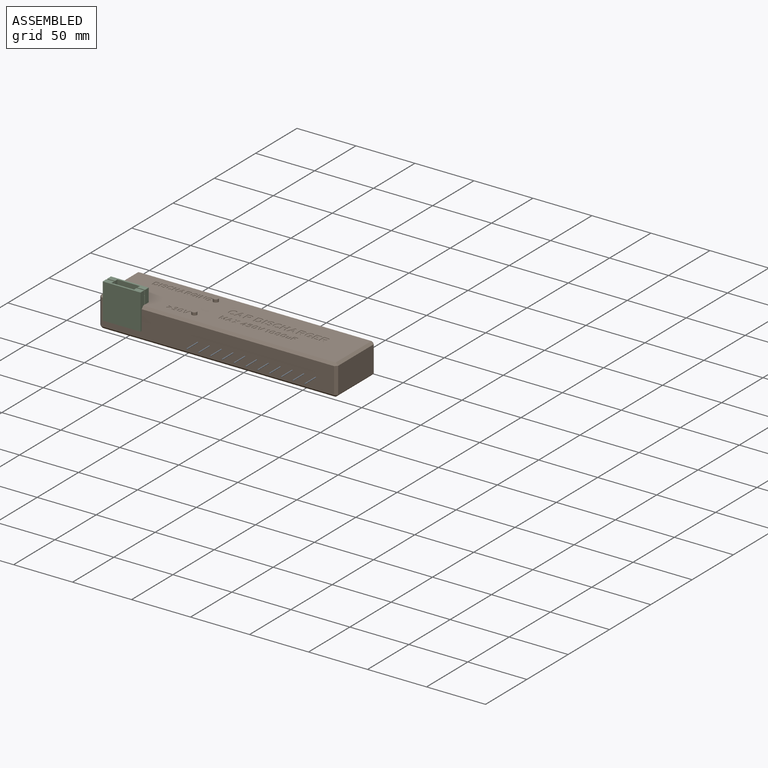
[diagram: assembled view]
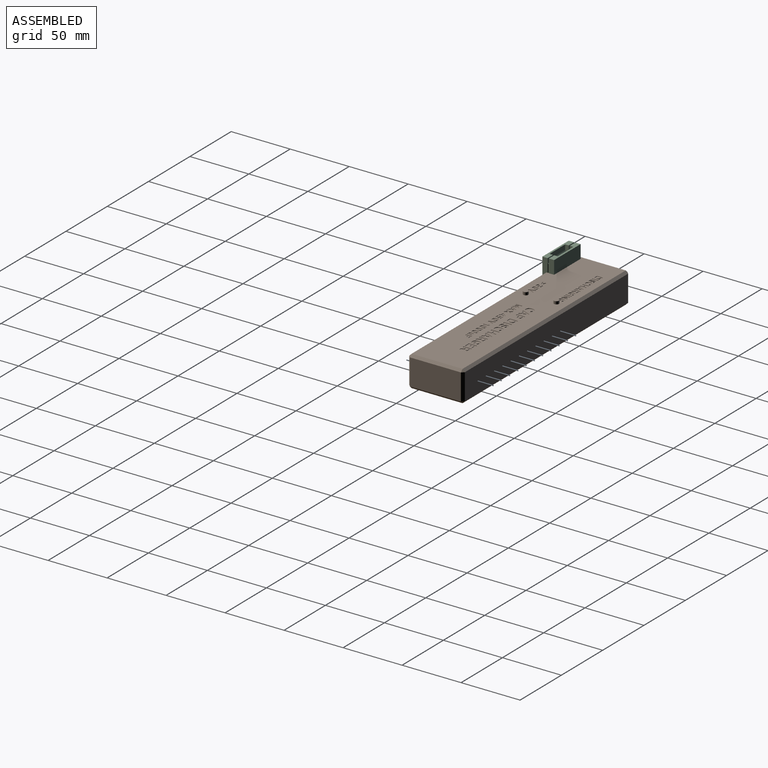
[diagram: assembled view, second angle]
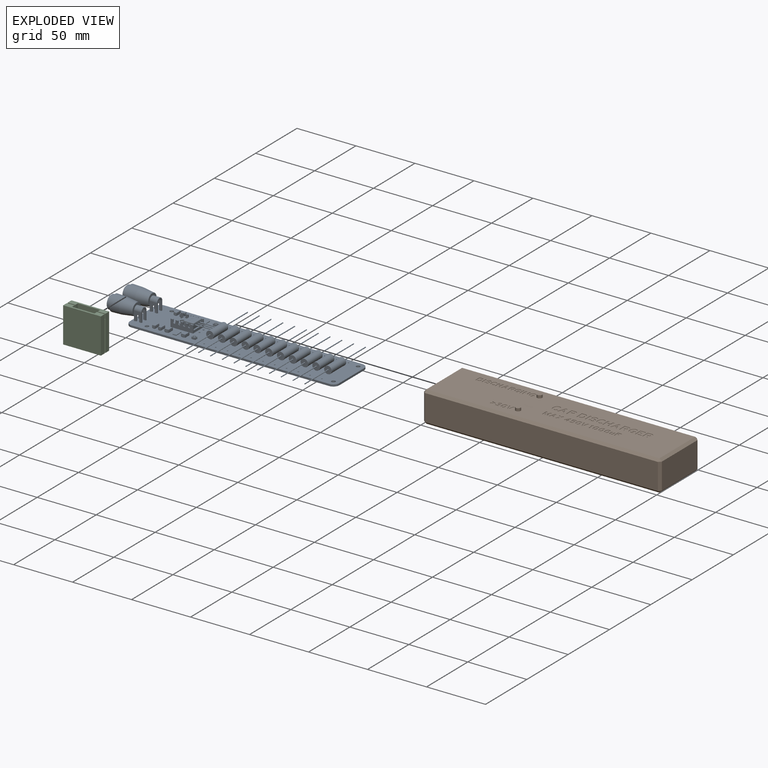
[diagram: exploded view]
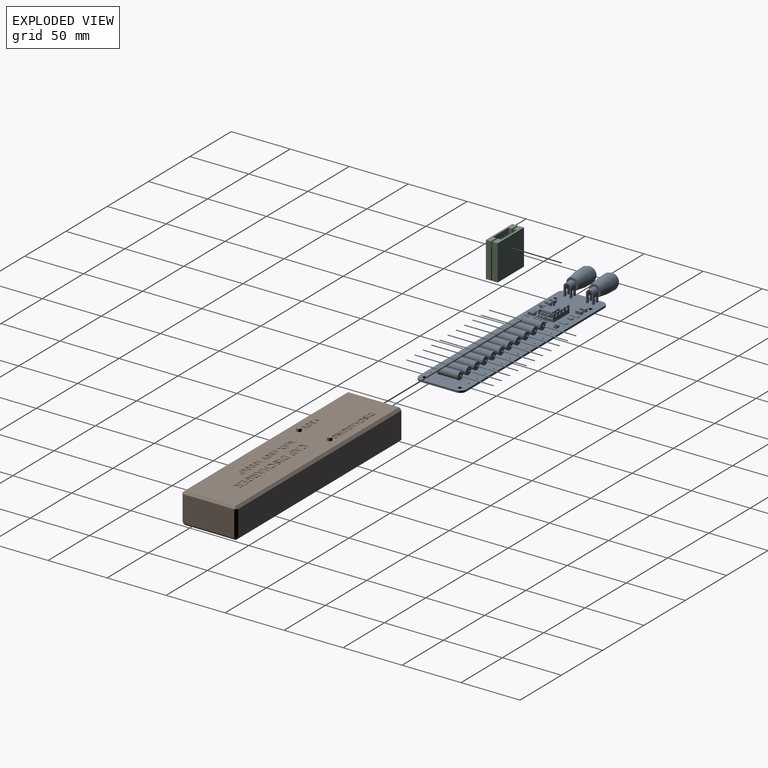
[diagram: exploded view, second angle]
FCSTD DOCUMENT  (FreeCAD 0.21R33771 (Git))
Label: 1024 Capacitor Discharger Case
License: All rights reserved
LicenseURL: http://en.wikipedia.org/wiki/All_rights_reserved
objects: Part::Feature×28, Sketcher::SketchObject×20, App::Link×18, App::Part×14, PartDesign::Pocket×13, PartDesign::Pad×10, PartDesign::Body×5, Part::Part2DObjectPython×4, Mesh::Feature×3, PartDesign::Chamfer×2, Spreadsheet::Sheet×1, PartDesign::CoordinateSystem×1
note: 108 computed .brp shape members not serialized (recipe doc carries the construction recipe); baked Part::Feature solids carry a one-line shape summary decoded from their .brp

FEATURE [Spreadsheet::Sheet] Spreadsheet  label="S"
  cells = A1='1024 Capacitor Discharger; A2='Handheld Case; A4='Board Edge Dimension X; B4='pcb_x; C4(pcb_x)==177.5 mm; D4='Design X dimension of PCB; A5='Board Edge Dimension Y; B5='pcb_y; C5(pcb_y)==40 mm; D5='Design Y dimension of PCB; A6='Board Thickness Z; B6='pcb_z; C6(pcb_z)==1.6 mm; D6='Design Z (thickness) dimension of PCB; A7='Mounting Hole 1 X Coordinate; B7='h1_x; C7(h1_x)==14.5 mm; D7='Relative to lower left corner of PCB, positive X to right, positive Y to top, note the Y coordinate sign is opposite KiCAD; A8='Mounting Hole 1 Y Coordinate; B8='h1_y; C8(h1_y)==5 mm; D8='Mounting Hole 1 = Lower Left, will be one of the registration pins; A9='Mounting Hole 1 Diameter; B9='h1_d; C9(h1_d)==3.2 mm; A10='Mounting Hole 2 X Coordinate; B10='h2_x; C10(h2_x)==14.5 mm; D10='Mounting Hole 2 = Upper Left, no registration; A11='Mounting Hole 2 Y Coordinate; B11='h2_y; C11(h2_y)==35 mm; A12='Mounting Hole 2 Diameter; B12='h2_d; C12(h2_d)==3.2 mm; A13='Mounting Hole 3 X Coordinate; B13='h3_x; C13(h3_x)==172.5 mm; D13='Mounting Hole 3 = Upper Right, will be one of the registration pins; A14='Mounting Hole 3 Y Coordinate; B14='h3_y; C14(h3_y)==35 mm; A15='Mounting Hole 3 Diameter; B15='h3_d; C15(h3_d)==3.2 mm; A16='Mounting Hole 4 X Coordinate; B16='h4_x; C16(h4_x)==172.5 mm; D16='Mounting Hole 4 = Lower Right, no registration; A17='Mounting Hole 4 Y Coordinate; B17='h4_y; C17(h4_y)==5 mm; A18='Mounting Hole 4 Diameter; B18='h4_d; C18(h4_d)==3.2 mm; A19='Connector Protrusion Left; B19='con_l; C19(con_l)==17 mm; D19='Distance from the board edge to the edge of any connector that protrudes from the left side MINUS the wall thickness.  Enter the clearance from the PCB edge if no connector on this edge.; A20='Connector Protrusion Right; B20='con_r; C20(con_r)==0.2 mm; A21='Connector Protrusion Top; B21='con_t; C21(con_t)==0.2 mm; A22='Connector Protrusion Bottom; B22='con_b; C22(con_b)==0.2 mm; A24='Case Assembly Screw Head Diameter; B24='scrw_head_d; C24(scrw_head_d)==5.33 mm; D24='Diameter of the screw head for assembling the case halves; A25='Case Assembly Screw Head Length; B25='scrw_head_l; C25(scrw_head_l)==2.93 mm; D25='Vertical distance between screw head compression surface and screw head top; A26='Case Assembly Screw Head Countersink; B26='scrw_head_cs; C26(scrw_head_cs)==1 mm; D26='Distance below the case surface of the top of the screw head; A27='Case Assembly Screw Head Seating Thickness; B27='scrw_heat_seatt; C27(scrw_heat_seatt)==2 mm; D27='The thickness of the plastic under the screw head; A28='Case Assembly Screw Major Diameter; B28='scrw_shaft_d; C28(scrw_shaft_d)==2.93 mm; D28='The major diameter of the screw; A29='Case Assembly Screw Hole Clearance; B29='scrw_clr; C29(scrw_clr)==0.5 mm; D29='The clearance required for the screw to pass through the plastic; A30='Case Assembly Screw Head Clearance; B30='scrw_head_clr; C30(scrw_head_clr)==0.75 mm; D30='The clearance required for the screw head; A31='Selected Heat Set Inserts for Top Case Half; C31='M3x6; A32='Heat Set Insert Height; B32='hsi_h; C32(hsi_h)==6.01 mm; D32='Height of the heat set insert; A33='Heat Set Insert Major Diameter; B33='hsi_majd; C33(hsi_majd)==4.19 mm; D33='Diameter of the outer ribs of the heat set insert; A34='Heat Set Insert Minor Diameter; B34='hsi_mind; C34(hsi_mind)==3.77 mm; D34='Diameter of the outer portion of the insert without the ribs; A35='Heat Set Insert Screw Depth Clearance; B35='hsi_scrwclr; C35(hsi_scrwclr)==2 mm; D35='Additional space beyond the insert where the screw can protrude through the insert; A36='3D Print Overextrude Dimension; B36='ThreeDP_overext; C36(ThreeDP_overext)==0.15 mm; D36='The amount that the 3D printer will extrude plastic beyond a given boundary; A37='3D Print Layer Height; B37='ThreeDP_layerh; C37(ThreeDP_layerh)==0.4 mm; D37='The layer height of the 3D print, used to compute screw hole bridges; A38='Heat Set Insert Hole Diameter; B38='hsi_hole_dia; C38(hsi_hole_dia)==(C33 + C34) / 2 + 2 * C36; D38='Final calculated HSI hole diameter; A39='Heat Set Insert Hole Depth; B39='hsi_hole_depth; C39(hsi_hole_depth)==C32 + C35; D39='Final calculated HSI hole depth; A40='HSI Enclosure Wall Thickness; B40='hsi_wallt; C40(hsi_wallt)==2 mm; D40='The thickness of the plastic that has to surround the hole where the HSI is going to be inserted; A41='PCB Component Maximum Height; B41='pcb_comph; C41(pcb_comph)==7.6 mm + 13.5 mm / 2; D41='The maximum height above the PCB surface of any component; A42='PCB Component Height Clearance; B42='pcb_comph_clr; C42(pcb_comph_clr)==1 mm; D42='The clearance between the top of the highest component on the PCB and the inner surface of the top wall; A43='Case Wall Thickness; B43='case_wallt; C43(case_wallt)==3.4 mm; D43='The thickness of the case walls, the overlap thickness will be half of this; A44='Case Halves Overlap Distance; B44='case_overlap; C44(case_overlap)==2.4 mm; D44='The amount of overlap of the two case halves; A45='Case Bottom Half Height; B45='case_bot_h; C45(case_bot_h)==C26 + C25 + C27 + C6; D45='The height of the case bottom half aligns with the top of the PCB. = Screw countersink + screw head height + screw seating thickness + PCB thickness; A46='Case Top Half Height; B46='case_top_h; C46(case_top_h)==C41 + C42 + C43; D46='The height of the case top half aligns with the top of the PCB. = PCB component max height + clearance + wall thickness; A47='Case Width; B47='case_x; C47(case_x)==2 * C43 + C4 + C19 + C20; D47='Total outside dimension of the case in the X direction. = 2*Wall thickness + PCB_X + Connector Left + Connector Right; A48='Case Depth; B48='case_y; C48(case_y)==2 * C43 + C5 + C21 + C22; D48='Total outside dimension of the case in the Y direction. = 2*Wall thickness + PCB_Y + Connector Top + Connector Bottom; A49='LED Mounting Height; B49='led_h; C49(led_h)==3.27 mm; D49='Height above PCB surface of the LED; A50='Light Pipe Maximum Height; B50='led_lp_hmax; C50(led_lp_hmax)==C46 - C49; D50='Light pipe distance maximum, actual light pipe distance needs to be less than this; A51='Light Pipe Actual Height; B51='led_lp_h; C51(led_lp_h)==12.7 mm; D51='Light pipe distance actual; A52='Project Title Location X; B52='prtit_x; C52(prtit_x)==70 mm; D52='Location of the Project Title Text X; A53='Project Title Location Y; B53='prtit_y; C53(prtit_y)==21.25 mm; D53='Location of the Project Title Text Y; A54='Project Title Font Size; B54='prtit_fontsz; C54(prtit_fontsz)==8 mm; D54='Font Size of the Project Title; A55='Project Title Text; B55='prtit_text; C55(prtit_text)='CAP DISCHARGER; D55='Text of the Project Title; A56='Subtitle Location X; B56='subt_x; C56(subt_x)==70 mm; D56='Location of the Subtitle Text X; A57='Subtitle Location Y; B57='subt_y; +58 more cells
FEATURE [PartDesign::CoordinateSystem] Local_CS_7993
  AttacherType = Attacher::AttachEngine3D
  MapMode = 2
  Support = -> [X_Axis001]
FEATURE [Part::Feature] Pcb_7993
  Placement = pos=(-68.5,115,0) rot=(0,0,1;0rad)
  shape: bbox 177.5 x 40 x 1.646 mm, 48 faces (baked)
FEATURE [Sketcher::SketchObject] PCB_Sketch_7993
  FullyConstrained = false
  sketch-geometry (8):
    g0: LineSegment StartX=5 StartY=40 StartZ=0 EndX=172.5 EndY=40 EndZ=0
    g1: LineSegment StartX=-9e-16 StartY=35 StartZ=0 EndX=-9e-16 EndY=5 EndZ=0
    g2: LineSegment StartX=177.5 StartY=35 StartZ=0 EndX=177.5 EndY=5 EndZ=0
    g3: LineSegment StartX=172.5 StartY=-1.8e-15 StartZ=0 EndX=5 EndY=-9e-16 EndZ=0
    g4: ArcOfCircle CenterX=5 CenterY=5 CenterZ=0 NormalX=0 NormalY=0 NormalZ=-1 AngleXU=-1.5708 Radius=5 StartAngle=0 EndAngle=1.5708
    g5: ArcOfCircle CenterX=172.5 CenterY=35 CenterZ=0 NormalX=0 NormalY=0 NormalZ=-1 AngleXU=1.5708 Radius=5 StartAngle=0 EndAngle=1.5708
    g6: ArcOfCircle CenterX=5 CenterY=35 CenterZ=0 NormalX=0 NormalY=0 NormalZ=-1 AngleXU=-6.42331e-08 Radius=5 StartAngle=0 EndAngle=1.5708
    g7: ArcOfCircle CenterX=172.5 CenterY=5 CenterZ=0 NormalX=0 NormalY=0 NormalZ=-1 AngleXU=3.14159 Radius=5 StartAngle=0 EndAngle=1.5708
  constraints (8):
    c: Coincident(g1,g4)
    c: Coincident(g1,g6)
    c: Coincident(g3,g4)
    c: Coincident(g0,g6)
    c: Coincident(g3,g7)
    c: Coincident(g0,g5)
    c: Coincident(g2,g7)
    c: Coincident(g2,g5)
FEATURE [App::Part] Board_Geoms_7993
  Group = -> [Pcb_7993,PCB_Sketch_7993]
  Origin = -> Origin
FEATURE [Part::Feature] Part__Feature  label="Body"
  shape: bbox 3.16 x 2.81 x 1.8 mm, 88 faces (baked)
FEATURE [Part::Feature] Part__Feature001  label="Pins"
  Placement = pos=(0,1e-15,0.740085) rot=(0,0,1;0rad)
  shape: bbox 3.5 x 0.7 x 1.2 mm, 22 faces (baked)
FEATURE [Part::Feature] Part__Feature002  label="Pins001"
  Placement = pos=(0,1e-15,0.740085) rot=(0,0,1;0rad)
  shape: bbox 3.5 x 0.7 x 1.2 mm, 22 faces (baked)
FEATURE [App::Part] Pins  label="Pins002"
  Group = -> [Part__Feature001,Part__Feature002]
  Origin = -> Origin008
FEATURE [Part::Feature] Part__Feature003  label="Dome"
  Placement = pos=(0,0,1.79) rot=(0,0,1;0rad)
  shape: bbox 2.5 x 2.4 x 2.5 mm, 2 faces (baked)
FEATURE [App::Part] _50141xx46100  label="D7_150141xx46100_null"
  Group = -> [Part__Feature,Pins,Part__Feature003]
  Origin = -> Origin009
  Placement = pos=(53.25,7,0) rot=(0,0,1;0rad)
FEATURE [Part::Feature] Part__Feature004  label="CC03B40E-02DF-4F59-954C-E15786C4EF3A"
  shape: bbox 6.21 x 21.45 x 13.77 mm, 42 faces (baked)
FEATURE [Part::Feature] Part__Feature005  label="CC03B40E-02DF-4F59-954C-E15786C4EF3A001"
  shape: bbox 13.46 x 21.59 x 13.46 mm, 28 faces (baked)
FEATURE [App::Part] CC03B40E_02DF_4F59_954C_E15786C4EF3A  label="J1_CC03B40E-02DF-4F59-954C-E15786C4EF3A002_null"
  Group = -> [Part__Feature004,Part__Feature005]
  Origin = -> Origin010
  Placement = pos=(1.9,10.475,0) rot=(0,0,1;1.5708rad)
FEATURE [Part::Feature] Part__Feature006  label="Product"
  shape: bbox 0.5 x 1.05 x 13.5 mm, 24 faces (baked)
FEATURE [Part::Feature] Part__Feature007  label="Product001"
  shape: bbox 0.5 x 1.35 x 13.5 mm, 26 faces (baked)
FEATURE [Part::Feature] Part__Feature008  label="Product002"
  shape: bbox 0.5 x 1.35 x 13.5 mm, 26 faces (baked)
FEATURE [Part::Feature] Part__Feature009  label="Product003"
  shape: bbox 4.58 x 10 x 9.25 mm, 23 faces (baked)
FEATURE [Part::Feature] Part__Feature010  label="Product004"
  shape: bbox 0.01 x 0.6891 x 0.8085 mm, 6 faces (baked)
FEATURE [Part::Feature] Part__Feature011  label="Product005"
  shape: bbox 0.01 x 0.5222 x 0.5222 mm, 4 faces (baked)
FEATURE [Part::Feature] Part__Feature012  label="Product006"
  shape: bbox 0.01 x 1.879 x 1.587 mm, 27 faces (baked)
FEATURE [Part::Feature] Part__Feature013  label="Product007"
  shape: bbox 1.27 x 9.9 x 12.95 mm, 26 faces (baked)
FEATURE [App::Part] Product  label="${REFERENCE}_Product008_null"
  Group = -> [Part__Feature006,Part__Feature007,Part__Feature008,Part__Feature009,Part__Feature010,Part__Feature011,Part__Feature012,Part__Feature013]
  Origin = -> Origin011
  Placement = pos=(51.52,20.04,5) rot=(0.707107,0,-0.707107;3.14159rad)
FEATURE [Part::Feature] Shape  label="${REFERENCE}_ATS-PCB1069_null[2]"
  Placement = pos=(38.05,20.05,0) rot=(0,0,-1;1.5708rad)
  shape: bbox 19.05 x 13.21 x 6.35 mm, 52 faces (baked)
FEATURE [Part::Feature] Shape001  label="${REFERENCE}_ROX5SSJ10R_null"
  Placement = pos=(133.5,20,4) rot=(1,0,0;1.5708rad)
  shape: bbox 13 x 73.5 x 6.5 mm, 34 faces (baked)
FEATURE [App::Link] __REFERENCE__ROX5SSJ10R_null_ln_  label="${REFERENCE}_ROX5SSJ10R_null001"
  LinkPlacement = pos=(63.5,20,4) rot=(1,0,0;1.5708rad)
  LinkedObject = -> Shape001
  Placement = pos=(63.5,20,4) rot=(1,0,0;1.5708rad)
FEATURE [Part::Feature] Part__Feature014  label="Body001"
  shape: bbox 4.995 x 2.605 x 2.3 mm, 15 faces (baked)
FEATURE [Part::Feature] Part__Feature015  label="FilletPin1"
  shape: bbox 1.14 x 1.45 x 1.135 mm, 12 faces (baked)
FEATURE [Part::Feature] Part__Feature016  label="FilletPin2"
  shape: bbox 1.24 x 1.45 x 1.135 mm, 12 faces (baked)
FEATURE [App::Part] ASSEMBLY  label="${REFERENCE}_ASSEMBLY_null"
  Group = -> [Part__Feature014,Part__Feature015,Part__Feature016]
  Origin = -> Origin012
  Placement = pos=(20.5,7,0) rot=(0,0,-1;1.5708rad)
FEATURE [Part::Feature] Part__Feature017  label="Body002"
  shape: bbox 5.205 x 3.625 x 2.37 mm, 15 faces (baked)
FEATURE [Part::Feature] Part__Feature018  label="FilletPin003"
  shape: bbox 1.18 x 2.08 x 1.167 mm, 12 faces (baked)
FEATURE [Part::Feature] Part__Feature019  label="FilletPin004"
  shape: bbox 1.28 x 2.08 x 1.167 mm, 12 faces (baked)
FEATURE [App::Part] ASSEMBLY001  label="${REFERENCE}_ASSEMBLY_null001"
  Group = -> [Part__Feature017,Part__Feature018,Part__Feature019]
  Origin = -> Origin013
  Placement = pos=(31.5,7,0) rot=(0,0,-1;1.5708rad)
FEATURE [App::Link] __REFERENCE__ROX5SSJ10R_null_ln_001  label="${REFERENCE}_ROX5SSJ10R_null002"
  LinkPlacement = pos=(163.5,20,4) rot=(1,0,0;1.5708rad)
  LinkedObject = -> Shape001
  Placement = pos=(163.5,20,4) rot=(1,0,0;1.5708rad)
FEATURE [Part::Feature] Part__Feature020  label="SOD128 Lead"
  Placement = pos=(-0.626035,4.71442,6.04954) rot=(0,0,1;0rad)
  shape: bbox 1.9 x 0.36 x 1.75 mm, 14 faces (baked)
FEATURE [Part::Feature] Part__Feature021  label="SOD128 Lead001"
  Placement = pos=(-0.626035,4.71442,6.04954) rot=(0,0,1;0rad)
  shape: bbox 1.9 x 0.36 x 1.75 mm, 14 faces (baked)
FEATURE [App::Part] SOD128_Lead  label="SOD128 Lead002"
  Group = -> [Part__Feature020,Part__Feature021]
  Origin = -> Origin014
FEATURE [Part::Feature] Part__Feature022  label="SOD128 Lower body"
  Placement = pos=(-0.126035,4.87442,5.67454) rot=(1,0,0;3.14159rad)
  shape: bbox 3.703 x 0.1548 x 2.503 mm, 28 faces (baked)
FEATURE [Part::Feature] Part__Feature023  label="SOD128 Upper body"
  Placement = pos=(-0.176035,4.87442,8.17454) rot=(0,0,1;0rad)
  shape: bbox 3.801 x 0.9125 x 2.6 mm, 74 faces (baked)
FEATURE [App::Part] SOD128_step  label="${REFERENCE}_SOD128 step_null"
  Group = -> [SOD128_Lead,Part__Feature022,Part__Feature023]
  Origin = -> Origin015
  Placement = pos=(29.53,31.34,-4.71) rot=(0.57735,0.57735,0.57735;2.0944rad)
FEATURE [App::Link] __REFERENCE__ASSEMBLY_null_ln_  label="${REFERENCE}_ASSEMBLY_null002"
  LinkPlacement = pos=(25.5,33,0) rot=(0,0,-1;1.5708rad)
  LinkedObject = -> ASSEMBLY
  Placement = pos=(25.5,33,0) rot=(0,0,-1;1.5708rad)
FEATURE [App::Link] __REFERENCE__ROX5SSJ10R_null_ln_002  label="${REFERENCE}_ROX5SSJ10R_null003"
  LinkPlacement = pos=(103.5,20,4) rot=(1,0,0;1.5708rad)
  LinkedObject = -> Shape001
  Placement = pos=(103.5,20,4) rot=(1,0,0;1.5708rad)
FEATURE [App::Link] __REFERENCE__ROX5SSJ10R_null_ln_003  label="${REFERENCE}_ROX5SSJ10R_null004"
  LinkPlacement = pos=(123.5,20,4) rot=(1,0,0;1.5708rad)
  LinkedObject = -> Shape001
  Placement = pos=(123.5,20,4) rot=(1,0,0;1.5708rad)
FEATURE [Part::Feature] Shape002  label="${REFERENCE}_R_2512_6332Metric_null"
  Placement = pos=(44.5,33,0) rot=(0,0,1;1.5708rad)
  shape: bbox 3.2 x 6.3 x 0.6 mm, 26 faces (baked)
FEATURE [App::Link] __REFERENCE__ROX5SSJ10R_null_ln_004  label="${REFERENCE}_ROX5SSJ10R_null005"
  LinkPlacement = pos=(83.5,20,4) rot=(1,0,0;1.5708rad)
  LinkedObject = -> Shape001
  Placement = pos=(83.5,20,4) rot=(1,0,0;1.5708rad)
FEATURE [App::Link] __REFERENCE__ROX5SSJ10R_null_ln_005  label="${REFERENCE}_ROX5SSJ10R_null006"
  LinkPlacement = pos=(153.5,20,4) rot=(1,0,0;1.5708rad)
  LinkedObject = -> Shape001
  Placement = pos=(153.5,20,4) rot=(1,0,0;1.5708rad)
FEATURE [App::Link] __REFERENCE__ROX5SSJ10R_null_ln_006  label="${REFERENCE}_ROX5SSJ10R_null007"
  LinkPlacement = pos=(93.5,20,4) rot=(1,0,0;1.5708rad)
  LinkedObject = -> Shape001
  Placement = pos=(93.5,20,4) rot=(1,0,0;1.5708rad)
FEATURE [App::Link] __REFERENCE__R_2512_6332Metric_null_ln_  label="${REFERENCE}_R_2512_6332Metric_null001"
  LinkPlacement = pos=(30.5,33,0) rot=(0,0,-1;1.5708rad)
  LinkedObject = -> Shape002
  Placement = pos=(30.5,33,0) rot=(0,0,-1;1.5708rad)
FEATURE [App::Link] J1_CC03B40E_02DF_4F59_954C_E15786C4EF3A002_null_ln_  label="J2_CC03B40E-02DF-4F59-954C-E15786C4EF3A002_null"
  LinkPlacement = pos=(1.9,29.525,0) rot=(0,0,1;1.5708rad)
  LinkedObject = -> CC03B40E_02DF_4F59_954C_E15786C4EF3A
  Placement = pos=(1.9,29.525,0) rot=(0,0,1;1.5708rad)
FEATURE [App::Link] __REFERENCE__R_2512_6332Metric_null_ln_001  label="${REFERENCE}_R_2512_6332Metric_null002"
  LinkPlacement = pos=(38.5,7,0) rot=(0,0,-1;1.5708rad)
  LinkedObject = -> Shape002
  Placement = pos=(38.5,7,0) rot=(0,0,-1;1.5708rad)
FEATURE [App::Link] __REFERENCE__ROX5SSJ10R_null_ln_007  label="${REFERENCE}_ROX5SSJ10R_null008"
  LinkPlacement = pos=(73.5,20,4) rot=(1,0,0;1.5708rad)
  LinkedObject = -> Shape001
  Placement = pos=(73.5,20,4) rot=(1,0,0;1.5708rad)
FEATURE [App::Link] __REFERENCE__ASSEMBLY_null_ln_001  label="${REFERENCE}_ASSEMBLY_null003"
  LinkPlacement = pos=(25.5,7,0) rot=(0,0,-1;1.5708rad)
  LinkedObject = -> ASSEMBLY
  Placement = pos=(25.5,7,0) rot=(0,0,-1;1.5708rad)
FEATURE [App::Link] D7_150141xx46100_null_ln_  label="D8_150141xx46100_null"
  LinkPlacement = pos=(53.25,33,0) rot=(0,0,1;0rad)
  LinkedObject = -> _50141xx46100
  Placement = pos=(53.25,33,0) rot=(0,0,1;0rad)
FEATURE [App::Link] __REFERENCE__ROX5SSJ10R_null_ln_008  label="${REFERENCE}_ROX5SSJ10R_null009"
  LinkPlacement = pos=(113.5,20,4) rot=(1,0,0;1.5708rad)
  LinkedObject = -> Shape001
  Placement = pos=(113.5,20,4) rot=(1,0,0;1.5708rad)
FEATURE [App::Link] __REFERENCE__ASSEMBLY_null001_ln_  label="${REFERENCE}_ASSEMBLY_null004"
  LinkPlacement = pos=(45.5,7,0) rot=(0,0,-1;1.5708rad)
  LinkedObject = -> ASSEMBLY001
  Placement = pos=(45.5,7,0) rot=(0,0,-1;1.5708rad)
FEATURE [App::Link] __REFERENCE__ASSEMBLY_null_ln_002  label="${REFERENCE}_ASSEMBLY_null005"
  LinkPlacement = pos=(20.5,33,0) rot=(0,0,-1;1.5708rad)
  LinkedObject = -> ASSEMBLY
  Placement = pos=(20.5,33,0) rot=(0,0,-1;1.5708rad)
FEATURE [App::Link] __REFERENCE__ROX5SSJ10R_null_ln_009  label="${REFERENCE}_ROX5SSJ10R_null010"
  LinkPlacement = pos=(143.5,20,4) rot=(1,0,0;1.5708rad)
  LinkedObject = -> Shape001
  Placement = pos=(143.5,20,4) rot=(1,0,0;1.5708rad)
FEATURE [App::Part] Top_7993
  Group = -> [_50141xx46100,CC03B40E_02DF_4F59_954C_E15786C4EF3A,Product,Shape,Shape001,__REFERENCE__ROX5SSJ10R_null_ln_,ASSEMBLY,ASSEMBLY001,__REFERENCE__ROX5SSJ10R_null_ln_001,SOD128_step,__REFERENCE__ASSEMBLY_null_ln_,__REFERENCE__ROX5SSJ10R_null_ln_002,__REFERENCE__ROX5SSJ10R_null_ln_003,Shape002,__REFERENCE__ROX5SSJ10R_null_ln_004,__REFERENCE__ROX5SSJ10R_null_ln_005,__REFERENCE__ROX5SSJ10R_null_ln_006,+10 more]
  Origin = -> Origin003
FEATURE [App::Part] Step_Models_7993
  Group = -> [Top_7993]
  Origin = -> Origin002
FEATURE [App::Part] Board_7993  label="1024 Capacitor Discharger PCB"
  Group = -> [Local_CS_7993,Board_Geoms_7993,Step_Models_7993]
  Origin = -> Origin001
FEATURE [Sketcher::SketchObject] Sketch  label="Sketch-CaseBottomSurface"
  AttachmentOffset = pos=(0,0,-7.53) rot=(0,0,1;0rad)
  FullyConstrained = true
  MapMode = 5
  Placement = pos=(0,0,-7.53) rot=(0,0,1;0rad)
  Support = -> [XY_Plane017]
  expr: .AttachmentOffset.Base.z = -<<S>>.case_bot_h
  expr: Constraints[10] = <<S>>.case_y
  expr: Constraints[11] = <<S>>.case_x
  expr: Constraints[8] = <<S>>.case_wallt + <<S>>.con_l
  expr: Constraints[9] = <<S>>.case_wallt + <<S>>.con_b
  sketch-geometry (4):
    g0: LineSegment StartX=-20.4 StartY=43.6 StartZ=0 EndX=181.1 EndY=43.6 EndZ=0
    g1: LineSegment StartX=181.1 StartY=43.6 StartZ=0 EndX=181.1 EndY=-3.6 EndZ=0
    g2: LineSegment StartX=181.1 StartY=-3.6 StartZ=0 EndX=-20.4 EndY=-3.6 EndZ=0
    g3: LineSegment StartX=-20.4 StartY=-3.6 StartZ=0 EndX=-20.4 EndY=43.6 EndZ=0
  constraints (12):
    c: Coincident(g0,g1)
    c: Coincident(g1,g2)
    c: Coincident(g2,g3)
    c: Coincident(g3,g0)
    c: Horizontal(g0)
    c: Horizontal(g2)
    c: Vertical(g1)
    c: Vertical(g3)
    c: DistanceX(g2,g-1) = 20.4
    c: DistanceY(g2,g-1) = 3.6
    c: DistanceY(g3,g3) = 47.2
    c: DistanceX(g2,g2) = 201.5
FEATURE [Sketcher::SketchObject] Sketch001  label="Sketch-CaseBottomWall"
  AttachmentOffset = pos=(0,0,-4.13) rot=(0,0,1;0rad)
  FullyConstrained = true
  MapMode = 5
  Placement = pos=(0,0,-4.13) rot=(0,0,1;0rad)
  Support = -> [XY_Plane017]
  expr: .AttachmentOffset.Base.z = -<<S>>.case_bot_h + <<S>>.case_wallt
  expr: Constraints[10] = <<S>>.case_y
  expr: Constraints[11] = <<S>>.case_x
  expr: Constraints[20] = <<S>>.con_l
  expr: Constraints[21] = <<S>>.con_b
  expr: Constraints[22] = <<S>>.case_y - 2 * <<S>>.case_wallt
  expr: Constraints[23] = <<S>>.case_x - 2 * <<S>>.case_wallt
  expr: Constraints[8] = <<S>>.case_wallt + <<S>>.con_l
  expr: Constraints[9] = <<S>>.case_wallt + <<S>>.con_b
  sketch-geometry (8):
    g0: LineSegment StartX=-20.4 StartY=43.6 StartZ=0 EndX=181.1 EndY=43.6 EndZ=0
    g1: LineSegment StartX=181.1 StartY=43.6 StartZ=0 EndX=181.1 EndY=-3.6 EndZ=0
    g2: LineSegment StartX=181.1 StartY=-3.6 StartZ=0 EndX=-20.4 EndY=-3.6 EndZ=0
    g3: LineSegment StartX=-20.4 StartY=-3.6 StartZ=0 EndX=-20.4 EndY=43.6 EndZ=0
    g4: LineSegment StartX=-17 StartY=-0.2 StartZ=0 EndX=177.7 EndY=-0.2 EndZ=0
    g5: LineSegment StartX=177.7 StartY=-0.2 StartZ=0 EndX=177.7 EndY=40.2 EndZ=0
    g6: LineSegment StartX=177.7 StartY=40.2 StartZ=0 EndX=-17 EndY=40.2 EndZ=0
    g7: LineSegment StartX=-17 StartY=40.2 StartZ=0 EndX=-17 EndY=-0.2 EndZ=0
  constraints (24):
    c: Coincident(g0,g1)
    c: Coincident(g1,g2)
    c: Coincident(g2,g3)
    c: Coincident(g3,g0)
    c: Horizontal(g0)
    c: Horizontal(g2)
    c: Vertical(g1)
    c: Vertical(g3)
    c: DistanceX(g2,g-1) = 20.4
    c: DistanceY(g2,g-1) = 3.6
    c: DistanceY(g3,g3) = 47.2
    c: DistanceX(g2,g2) = 201.5
    c: Coincident(g4,g5)
    c: Coincident(g5,g6)
    c: Coincident(g6,g7)
    c: Coincident(g7,g4)
    c: Horizontal(g4)
    c: Horizontal(g6)
    c: Vertical(g5)
    c: Vertical(g7)
    c: DistanceX(g4,g-1) = 17
    c: DistanceY(g4,g-1) = 0.2
    c: DistanceY(g7,g7) = 40.4
    c: DistanceX(g4,g4) = 194.7
FEATURE [PartDesign::Pad] Pad  label="Pad-CaseBottomSurface"
  Direction = (0,0,1)
  Length = 3.4
  Length2 = 10
  Profile = -> Sketch
  ReferenceAxis = -> Sketch [N_Axis]
  Type = 0
  expr: Length = <<S>>.case_wallt
FEATURE [PartDesign::Pad] Pad001  label="Pad-CaseBottomWall"
  BaseFeature = -> Pad
  Direction = (0,0,1)
  Length = 4.13
  Length2 = 10
  Profile = -> Sketch001
  ReferenceAxis = -> Sketch001 [N_Axis]
  Type = 0
  expr: Length = <<S>>.case_bot_h - <<S>>.case_wallt
FEATURE [Sketcher::SketchObject] Sketch002  label="Sketch-BottomScrewHeadHoles"
  AttachmentOffset = pos=(0,0,-7.53) rot=(0,0,1;0rad)
  FullyConstrained = true
  MapMode = 5
  Placement = pos=(0,0,-7.53) rot=(0,0,1;0rad)
  Support = -> [XY_Plane017]
  expr: .AttachmentOffset.Base.z = -<<S>>.case_bot_h
  expr: Constraints[0] = <<S>>.h1_x
  expr: Constraints[11] = <<S>>.scrw_head_d + <<S>>.scrw_head_clr + 2 * <<S>>.ThreeDP_overext
  expr: Constraints[1] = <<S>>.h1_y
  expr: Constraints[2] = <<S>>.h2_x
  expr: Constraints[3] = <<S>>.h2_y
  expr: Constraints[5] = <<S>>.h4_x
  expr: Constraints[6] = <<S>>.h4_y
  expr: Constraints[8] = <<S>>.h3_x
  expr: Constraints[9] = <<S>>.h3_y
  sketch-geometry (4):
    g0: Circle CenterX=14.5 CenterY=35 CenterZ=0 NormalX=0 NormalY=0 NormalZ=1 AngleXU=0 Radius=3.19
    g1: Circle CenterX=14.5 CenterY=5 CenterZ=0 NormalX=0 NormalY=0 NormalZ=1 AngleXU=0 Radius=3.19
    g2: Circle CenterX=172.5 CenterY=35 CenterZ=0 NormalX=0 NormalY=0 NormalZ=1 AngleXU=0 Radius=3.19
    g3: Circle CenterX=172.5 CenterY=5 CenterZ=0 NormalX=0 NormalY=0 NormalZ=1 AngleXU=0 Radius=3.19
  constraints (12):
    c: DistanceX(g-1,g1) = 14.5
    c: DistanceY(g-1,g1) = 5
    c: DistanceX(g-1,g0) = 14.5
    c: DistanceY(g-1,g0) = 35
    c: Equal(g1,g0)
    c: DistanceX(g-1,g3) = 172.5
    c: DistanceY(g-1,g3) = 5
    c: Equal(g3,g1)
    c: DistanceX(g-1,g2) = 172.5
    c: DistanceY(g-1,g2) = 35
    c: Equal(g2,g1)
    c: Diameter(g1) = 6.38
FEATURE [Sketcher::SketchObject] Sketch003  label="Sketch-BottomSupports"
  AttachmentOffset = pos=(0,0,-4.13) rot=(0,0,1;0rad)
  FullyConstrained = true
  MapMode = 5
  Placement = pos=(0,0,-4.13) rot=(0,0,1;0rad)
  Support = -> [XY_Plane017]
  expr: .AttachmentOffset.Base.z = -<<S>>.case_bot_h + <<S>>.case_wallt
  expr: Constraints[0] = <<S>>.h1_x
  expr: Constraints[11] = 2 * <<S>>.hsi_wallt + <<S>>.hsi_hole_dia
  expr: Constraints[1] = <<S>>.h1_y
  expr: Constraints[2] = <<S>>.h2_x
  expr: Constraints[3] = <<S>>.h2_y
  expr: Constraints[5] = <<S>>.h4_x
  expr: Constraints[6] = <<S>>.h4_y
  expr: Constraints[8] = <<S>>.h3_x
  expr: Constraints[9] = <<S>>.h3_y
  sketch-geometry (4):
    g0: Circle CenterX=14.5 CenterY=35 CenterZ=0 NormalX=0 NormalY=0 NormalZ=1 AngleXU=0 Radius=4.14
    g1: Circle CenterX=14.5 CenterY=5 CenterZ=0 NormalX=0 NormalY=0 NormalZ=1 AngleXU=0 Radius=4.14
    g2: Circle CenterX=172.5 CenterY=35 CenterZ=0 NormalX=0 NormalY=0 NormalZ=1 AngleXU=0 Radius=4.14
    g3: Circle CenterX=172.5 CenterY=5 CenterZ=0 NormalX=0 NormalY=0 NormalZ=1 AngleXU=0 Radius=4.14
  constraints (12):
    c: DistanceX(g-1,g1) = 14.5
    c: DistanceY(g-1,g1) = 5
    c: DistanceX(g-1,g0) = 14.5
    c: DistanceY(g-1,g0) = 35
    c: Equal(g1,g0)
    c: DistanceX(g-1,g3) = 172.5
    c: DistanceY(g-1,g3) = 5
    c: Equal(g3,g1)
    c: DistanceX(g-1,g2) = 172.5
    c: DistanceY(g-1,g2) = 35
    c: Equal(g2,g1)
    c: Diameter(g1) = 8.28
FEATURE [PartDesign::Pad] Pad002  label="Pad-BottomSupports"
  BaseFeature = -> Pad001
  Direction = (0,0,1)
  Length = 4.13
  Length2 = 10
  Profile = -> Sketch003
  ReferenceAxis = -> Sketch003 [N_Axis]
  Type = 0
  expr: Length = <<S>>.case_bot_h - <<S>>.case_wallt
FEATURE [Sketcher::SketchObject] Sketch004  label="Sketch-BottomScrewHoles"
  AttachmentOffset = pos=(0,0,-3.2) rot=(0,0,1;0rad)
  FullyConstrained = true
  MapMode = 5
  Placement = pos=(0,0,-3.2) rot=(0,0,1;0rad)
  Support = -> [XY_Plane017]
  expr: .AttachmentOffset.Base.z = -<<S>>.case_bot_h + <<S>>.scrw_head_cs + <<S>>.scrw_head_l + <<S>>.ThreeDP_layerh
  expr: Constraints[0] = <<S>>.h1_x
  expr: Constraints[11] = <<S>>.scrw_shaft_d + <<S>>.scrw_clr + 2 * <<S>>.ThreeDP_overext
  expr: Constraints[1] = <<S>>.h1_y
  expr: Constraints[2] = <<S>>.h2_x
  expr: Constraints[3] = <<S>>.h2_y
  expr: Constraints[5] = <<S>>.h4_x
  expr: Constraints[6] = <<S>>.h4_y
  expr: Constraints[8] = <<S>>.h3_x
  expr: Constraints[9] = <<S>>.h3_y
  sketch-geometry (4):
    g0: Circle CenterX=14.5 CenterY=35 CenterZ=0 NormalX=0 NormalY=0 NormalZ=1 AngleXU=0 Radius=1.865
    g1: Circle CenterX=14.5 CenterY=5 CenterZ=0 NormalX=0 NormalY=0 NormalZ=1 AngleXU=0 Radius=1.865
    g2: Circle CenterX=172.5 CenterY=35 CenterZ=0 NormalX=0 NormalY=0 NormalZ=1 AngleXU=0 Radius=1.865
    g3: Circle CenterX=172.5 CenterY=5 CenterZ=0 NormalX=0 NormalY=0 NormalZ=1 AngleXU=0 Radius=1.865
  constraints (12):
    c: DistanceX(g-1,g1) = 14.5
    c: DistanceY(g-1,g1) = 5
    c: DistanceX(g-1,g0) = 14.5
    c: DistanceY(g-1,g0) = 35
    c: Equal(g1,g0)
    c: DistanceX(g-1,g3) = 172.5
    c: DistanceY(g-1,g3) = 5
    c: Equal(g3,g1)
    c: DistanceX(g-1,g2) = 172.5
    c: DistanceY(g-1,g2) = 35
    c: Equal(g2,g1)
    c: Diameter(g1) = 3.73
FEATURE [PartDesign::Pocket] Pocket  label="Pocket-BottomScrewHeadHoles"
  BaseFeature = -> Pad002
  Direction = (0,0,-1)
  Length = 3.93
  Length2 = 5
  Profile = -> Sketch002
  ReferenceAxis = -> Sketch002 [N_Axis]
  Reversed = true
  Type = 0
  expr: Length = <<S>>.scrw_head_cs + <<S>>.scrw_head_l
FEATURE [PartDesign::Pocket] Pocket001  label="Pocket-BottomScrewHoles"
  BaseFeature = -> Pocket
  Direction = (0,0,-1)
  Length = -3.2
  Length2 = 5
  Profile = -> Sketch004
  ReferenceAxis = -> Sketch004 [N_Axis]
  Type = 0
  expr: Length = -<<S>>.case_bot_h + <<S>>.scrw_head_cs + <<S>>.scrw_head_l + <<S>>.ThreeDP_layerh
FEATURE [Sketcher::SketchObject] Sketch005  label="Sketch-CaseBottomOverlap"
  FullyConstrained = true
  MapMode = 5
  Support = -> [XY_Plane017]
  expr: Constraints[10] = <<S>>.case_y - 2 * <<S>>.case_wallt
  expr: Constraints[11] = <<S>>.case_x - 2 * <<S>>.case_wallt
  expr: Constraints[20] = <<S>>.con_l + <<S>>.case_wallt / 2 - <<S>>.ThreeDP_overext
  expr: Constraints[21] = <<S>>.con_b + <<S>>.case_wallt / 2 - <<S>>.ThreeDP_overext
  expr: Constraints[22] = <<S>>.case_y - <<S>>.case_wallt - 2 * <<S>>.ThreeDP_overext
  expr: Constraints[23] = <<S>>.case_x - <<S>>.case_wallt - 2 * <<S>>.ThreeDP_overext
  expr: Constraints[8] = <<S>>.con_l
  expr: Constraints[9] = <<S>>.con_b
  sketch-geometry (8):
    g0: LineSegment StartX=-17 StartY=40.2 StartZ=0 EndX=177.7 EndY=40.2 EndZ=0
    g1: LineSegment StartX=177.7 StartY=40.2 StartZ=0 EndX=177.7 EndY=-0.2 EndZ=0
    g2: LineSegment StartX=177.7 StartY=-0.2 StartZ=0 EndX=-17 EndY=-0.2 EndZ=0
    g3: LineSegment StartX=-17 StartY=-0.2 StartZ=0 EndX=-17 EndY=40.2 EndZ=0
    g4: LineSegment StartX=-18.55 StartY=-1.75 StartZ=0 EndX=179.25 EndY=-1.75 EndZ=0
    g5: LineSegment StartX=179.25 StartY=-1.75 StartZ=0 EndX=179.25 EndY=41.75 EndZ=0
    g6: LineSegment StartX=179.25 StartY=41.75 StartZ=0 EndX=-18.55 EndY=41.75 EndZ=0
    g7: LineSegment StartX=-18.55 StartY=41.75 StartZ=0 EndX=-18.55 EndY=-1.75 EndZ=0
  constraints (24):
    c: Coincident(g0,g1)
    c: Coincident(g1,g2)
    c: Coincident(g2,g3)
    c: Coincident(g3,g0)
    c: Horizontal(g0)
    c: Horizontal(g2)
    c: Vertical(g1)
    c: Vertical(g3)
    c: DistanceX(g2,g-1) = 17
    c: DistanceY(g2,g-1) = 0.2
    c: DistanceY(g3,g3) = 40.4
    c: DistanceX(g2,g2) = 194.7
    c: Coincident(g4,g5)
    c: Coincident(g5,g6)
    c: Coincident(g6,g7)
    c: Coincident(g7,g4)
    c: Horizontal(g4)
    c: Horizontal(g6)
    c: Vertical(g5)
    c: Vertical(g7)
    c: DistanceX(g4,g-1) = 18.55
    c: DistanceY(g4,g-1) = 1.75
    c: DistanceY(g7,g7) = 43.5
    c: DistanceX(g4,g4) = 197.8
FEATURE [PartDesign::Pad] Pad003  label="Pad-CaseBottomOverlap"
  BaseFeature = -> Pocket001
  Direction = (0,0,1)
  Length = 2
  Length2 = 10
  Profile = -> Sketch005
  ReferenceAxis = -> Sketch005 [N_Axis]
  Type = 0
  expr: Length = <<S>>.case_overlap - <<S>>.ThreeDP_layerh
FEATURE [Sketcher::SketchObject] Sketch006  label="Sketch-CaseTopWall"
  FullyConstrained = true
  MapMode = 5
  Support = -> [XY_Plane018]
  expr: Constraints[10] = <<S>>.case_y
  expr: Constraints[11] = <<S>>.case_x
  expr: Constraints[20] = <<S>>.con_l
  expr: Constraints[21] = <<S>>.con_b
  expr: Constraints[22] = <<S>>.case_y - 2 * <<S>>.case_wallt
  expr: Constraints[23] = <<S>>.case_x - 2 * <<S>>.case_wallt
  expr: Constraints[8] = <<S>>.case_wallt + <<S>>.con_l
  expr: Constraints[9] = <<S>>.case_wallt + <<S>>.con_b
  sketch-geometry (8):
    g0: LineSegment StartX=-20.4 StartY=43.6 StartZ=0 EndX=181.1 EndY=43.6 EndZ=0
    g1: LineSegment StartX=181.1 StartY=43.6 StartZ=0 EndX=181.1 EndY=-3.6 EndZ=0
    g2: LineSegment StartX=181.1 StartY=-3.6 StartZ=0 EndX=-20.4 EndY=-3.6 EndZ=0
    g3: LineSegment StartX=-20.4 StartY=-3.6 StartZ=0 EndX=-20.4 EndY=43.6 EndZ=0
    g4: LineSegment StartX=-17 StartY=-0.2 StartZ=0 EndX=177.7 EndY=-0.2 EndZ=0
    g5: LineSegment StartX=177.7 StartY=-0.2 StartZ=0 EndX=177.7 EndY=40.2 EndZ=0
    g6: LineSegment StartX=177.7 StartY=40.2 StartZ=0 EndX=-17 EndY=40.2 EndZ=0
    g7: LineSegment StartX=-17 StartY=40.2 StartZ=0 EndX=-17 EndY=-0.2 EndZ=0
  constraints (24):
    c: Coincident(g0,g1)
    c: Coincident(g1,g2)
    c: Coincident(g2,g3)
    c: Coincident(g3,g0)
    c: Horizontal(g0)
    c: Horizontal(g2)
    c: Vertical(g1)
    c: Vertical(g3)
    c: DistanceX(g2,g-1) = 20.4
    c: DistanceY(g2,g-1) = 3.6
    c: DistanceY(g3,g3) = 47.2
    c: DistanceX(g2,g2) = 201.5
    c: Coincident(g4,g5)
    c: Coincident(g5,g6)
    c: Coincident(g6,g7)
    c: Coincident(g7,g4)
    c: Horizontal(g4)
    c: Horizontal(g6)
    c: Vertical(g5)
    c: Vertical(g7)
    c: DistanceX(g4,g-1) = 17
    c: DistanceY(g4,g-1) = 0.2
    c: DistanceY(g7,g7) = 40.4
    c: DistanceX(g4,g4) = 194.7
FEATURE [PartDesign::Pad] Pad004  label="Pad-CaseTopWall"
  Direction = (0,0,1)
  Length = 15.35
  Length2 = 10
  Profile = -> Sketch006
  ReferenceAxis = -> Sketch006 [N_Axis]
  Type = 0
  expr: Length = <<S>>.case_top_h - <<S>>.case_wallt
FEATURE [Sketcher::SketchObject] Sketch007  label="Sketch-CaseTopOverlap"
  FullyConstrained = true
  MapMode = 5
  Support = -> [XY_Plane018]
  expr: Constraints[10] = <<S>>.case_y - 2 * <<S>>.case_wallt
  expr: Constraints[11] = <<S>>.case_x - 2 * <<S>>.case_wallt
  expr: Constraints[20] = <<S>>.con_l + <<S>>.case_wallt / 2 + <<S>>.ThreeDP_overext
  expr: Constraints[21] = <<S>>.con_b + <<S>>.case_wallt / 2 + <<S>>.ThreeDP_overext
  expr: Constraints[22] = <<S>>.case_y - <<S>>.case_wallt + 2 * <<S>>.ThreeDP_overext
  expr: Constraints[23] = <<S>>.case_x - <<S>>.case_wallt + 2 * <<S>>.ThreeDP_overext
  expr: Constraints[8] = <<S>>.con_l
  expr: Constraints[9] = <<S>>.con_b
  sketch-geometry (8):
    g0: LineSegment StartX=-17 StartY=40.2 StartZ=0 EndX=177.7 EndY=40.2 EndZ=0
    g1: LineSegment StartX=177.7 StartY=40.2 StartZ=0 EndX=177.7 EndY=-0.2 EndZ=0
    g2: LineSegment StartX=177.7 StartY=-0.2 StartZ=0 EndX=-17 EndY=-0.2 EndZ=0
    g3: LineSegment StartX=-17 StartY=-0.2 StartZ=0 EndX=-17 EndY=40.2 EndZ=0
    g4: LineSegment StartX=-18.85 StartY=-2.05 StartZ=0 EndX=179.55 EndY=-2.05 EndZ=0
    g5: LineSegment StartX=179.55 StartY=-2.05 StartZ=0 EndX=179.55 EndY=42.05 EndZ=0
    g6: LineSegment StartX=179.55 StartY=42.05 StartZ=0 EndX=-18.85 EndY=42.05 EndZ=0
    g7: LineSegment StartX=-18.85 StartY=42.05 StartZ=0 EndX=-18.85 EndY=-2.05 EndZ=0
  constraints (24):
    c: Coincident(g0,g1)
    c: Coincident(g1,g2)
    c: Coincident(g2,g3)
    c: Coincident(g3,g0)
    c: Horizontal(g0)
    c: Horizontal(g2)
    c: Vertical(g1)
    c: Vertical(g3)
    c: DistanceX(g2,g-1) = 17
    c: DistanceY(g2,g-1) = 0.2
    c: DistanceY(g3,g3) = 40.4
    c: DistanceX(g2,g2) = 194.7
    c: Coincident(g4,g5)
    c: Coincident(g5,g6)
    c: Coincident(g6,g7)
    c: Coincident(g7,g4)
    c: Horizontal(g4)
    c: Horizontal(g6)
    c: Vertical(g5)
    c: Vertical(g7)
    c: DistanceX(g4,g-1) = 18.85
    c: DistanceY(g4,g-1) = 2.05
    c: DistanceY(g7,g7) = 44.1
    c: DistanceX(g4,g4) = 198.4
FEATURE [PartDesign::Pocket] Pocket002  label="Pocket-CaseTopOverlap"
  BaseFeature = -> Pad004
  Direction = (0,0,-1)
  Length = 2.4
  Length2 = 5
  Profile = -> Sketch007
  ReferenceAxis = -> Sketch007 [N_Axis]
  Reversed = true
  Type = 0
  expr: Length = <<S>>.case_overlap
FEATURE [Sketcher::SketchObject] Sketch008  label="Sketch-CaseTopSurface"
  AttachmentOffset = pos=(0,0,15.35) rot=(0,0,1;0rad)
  FullyConstrained = true
  MapMode = 5
  Placement = pos=(0,0,15.35) rot=(0,0,1;0rad)
  Support = -> [XY_Plane018]
  expr: .AttachmentOffset.Base.z = <<S>>.case_top_h - <<S>>.case_wallt
  expr: Constraints[10] = <<S>>.case_y
  expr: Constraints[11] = <<S>>.case_x
  expr: Constraints[8] = <<S>>.case_wallt + <<S>>.con_l
  expr: Constraints[9] = <<S>>.case_wallt + <<S>>.con_b
  sketch-geometry (4):
    g0: LineSegment StartX=-20.4 StartY=43.6 StartZ=0 EndX=181.1 EndY=43.6 EndZ=0
    g1: LineSegment StartX=181.1 StartY=43.6 StartZ=0 EndX=181.1 EndY=-3.6 EndZ=0
    g2: LineSegment StartX=181.1 StartY=-3.6 StartZ=0 EndX=-20.4 EndY=-3.6 EndZ=0
    g3: LineSegment StartX=-20.4 StartY=-3.6 StartZ=0 EndX=-20.4 EndY=43.6 EndZ=0
  constraints (12):
    c: Coincident(g0,g1)
    c: Coincident(g1,g2)
    c: Coincident(g2,g3)
    c: Coincident(g3,g0)
    c: Horizontal(g0)
    c: Horizontal(g2)
    c: Vertical(g1)
    c: Vertical(g3)
    c: DistanceX(g2,g-1) = 20.4
    c: DistanceY(g2,g-1) = 3.6
    c: DistanceY(g3,g3) = 47.2
    c: DistanceX(g2,g2) = 201.5
FEATURE [PartDesign::Pad] Pad005  label="Pad-CaseTopSurface"
  BaseFeature = -> Pocket002
  Direction = (0,0,1)
  Length = 3.4
  Length2 = 10
  Profile = -> Sketch008
  ReferenceAxis = -> Sketch008 [N_Axis]
  Type = 0
  expr: Length = <<S>>.case_wallt
FEATURE [Sketcher::SketchObject] Sketch009  label="Sketch-TopSupports"
  AttachmentOffset = pos=(0,0,1.6) rot=(0,0,1;0rad)
  FullyConstrained = true
  MapMode = 5
  Placement = pos=(0,0,1.6) rot=(0,0,1;0rad)
  Support = -> [XY_Plane018]
  expr: .AttachmentOffset.Base.z = <<S>>.pcb_z
  expr: Constraints[0] = <<S>>.h1_x
  expr: Constraints[11] = 2 * <<S>>.hsi_wallt + <<S>>.hsi_hole_dia
  expr: Constraints[1] = <<S>>.h1_y
  expr: Constraints[2] = <<S>>.h2_x
  expr: Constraints[3] = <<S>>.h2_y
  expr: Constraints[5] = <<S>>.h4_x
  expr: Constraints[6] = <<S>>.h4_y
  expr: Constraints[8] = <<S>>.h3_x
  expr: Constraints[9] = <<S>>.h3_y
  sketch-geometry (4):
    g0: Circle CenterX=14.5 CenterY=35 CenterZ=0 NormalX=0 NormalY=0 NormalZ=1 AngleXU=0 Radius=4.14
    g1: Circle CenterX=14.5 CenterY=5 CenterZ=0 NormalX=0 NormalY=0 NormalZ=1 AngleXU=0 Radius=4.14
    g2: Circle CenterX=172.5 CenterY=35 CenterZ=0 NormalX=0 NormalY=0 NormalZ=1 AngleXU=0 Radius=4.14
    g3: Circle CenterX=172.5 CenterY=5 CenterZ=0 NormalX=0 NormalY=0 NormalZ=1 AngleXU=0 Radius=4.14
  constraints (12):
    c: DistanceX(g-1,g1) = 14.5
    c: DistanceY(g-1,g1) = 5
    c: DistanceX(g-1,g0) = 14.5
    c: DistanceY(g-1,g0) = 35
    c: Equal(g1,g0)
    c: DistanceX(g-1,g3) = 172.5
    c: DistanceY(g-1,g3) = 5
    c: Equal(g3,g1)
    c: DistanceX(g-1,g2) = 172.5
    c: DistanceY(g-1,g2) = 35
    c: Equal(g2,g1)
    c: Diameter(g1) = 8.28
FEATURE [PartDesign::Pad] Pad006  label="Pad-TopSupports"
  BaseFeature = -> Pad005
  Direction = (0,0,1)
  Length = 13.75
  Length2 = 10
  Profile = -> Sketch009
  ReferenceAxis = -> Sketch009 [N_Axis]
  Type = 0
  expr: Length = <<S>>.case_top_h - <<S>>.case_wallt - <<S>>.pcb_z
FEATURE [Sketcher::SketchObject] Sketch010  label="Sketch-HSIHoles"
  AttachmentOffset = pos=(0,0,1.6) rot=(0,0,1;0rad)
  FullyConstrained = true
  MapMode = 5
  Placement = pos=(0,0,1.6) rot=(0,0,1;0rad)
  Support = -> [XY_Plane018]
  expr: .AttachmentOffset.Base.z = <<S>>.pcb_z
  expr: Constraints[0] = <<S>>.h1_x
  expr: Constraints[11] = <<S>>.hsi_hole_dia + <<S>>.ThreeDP_overext
  expr: Constraints[1] = <<S>>.h1_y
  expr: Constraints[2] = <<S>>.h2_x
  expr: Constraints[3] = <<S>>.h2_y
  expr: Constraints[5] = <<S>>.h4_x
  expr: Constraints[6] = <<S>>.h4_y
  expr: Constraints[8] = <<S>>.h3_x
  expr: Constraints[9] = <<S>>.h3_y
  sketch-geometry (4):
    g0: Circle CenterX=14.5 CenterY=35 CenterZ=0 NormalX=0 NormalY=0 NormalZ=1 AngleXU=0 Radius=2.215
    g1: Circle CenterX=14.5 CenterY=5 CenterZ=0 NormalX=0 NormalY=0 NormalZ=1 AngleXU=0 Radius=2.215
    g2: Circle CenterX=172.5 CenterY=35 CenterZ=0 NormalX=0 NormalY=0 NormalZ=1 AngleXU=0 Radius=2.215
    g3: Circle CenterX=172.5 CenterY=5 CenterZ=0 NormalX=0 NormalY=0 NormalZ=1 AngleXU=0 Radius=2.215
  constraints (12):
    c: DistanceX(g-1,g1) = 14.5
    c: DistanceY(g-1,g1) = 5
    c: DistanceX(g-1,g0) = 14.5
    c: DistanceY(g-1,g0) = 35
    c: Equal(g1,g0)
    c: DistanceX(g-1,g3) = 172.5
    c: DistanceY(g-1,g3) = 5
    c: Equal(g3,g1)
    c: DistanceX(g-1,g2) = 172.5
    c: DistanceY(g-1,g2) = 35
    c: Equal(g2,g1)
    c: Diameter(g1) = 4.43
FEATURE [PartDesign::Pocket] Pocket003  label="Pocket-HSIHoles"
  BaseFeature = -> Pad006
  Direction = (0,0,-1)
  Length = 8.01
  Length2 = 5
  Profile = -> Sketch010
  ReferenceAxis = -> Sketch010 [N_Axis]
  Reversed = true
  Type = 0
  expr: Length = <<S>>.hsi_hole_depth
FEATURE [Sketcher::SketchObject] Sketch011  label="Sketch-ConnectorHolesLeft"
  AttachmentOffset = pos=(0,0,-20.4) rot=(0,0,1;0rad)
  FullyConstrained = true
  MapMode = 5
  Placement = pos=(-20.4,4.5e-15,-4.5e-15) rot=(0.57735,0.57735,0.57735;2.0944rad)
  Support = -> [YZ_Plane018]
  expr: .AttachmentOffset.Base.z = -<<S>>.con_l - <<S>>.case_wallt
  expr: Constraints[2] = 11.5 mm + 2 * <<S>>.ThreeDP_overext
  sketch-geometry (2):
    g0: Circle CenterX=29.525 CenterY=7.6 CenterZ=0 NormalX=0 NormalY=0 NormalZ=1 AngleXU=0 Radius=5.9
    g1: Circle CenterX=10.475 CenterY=7.6 CenterZ=0 NormalX=0 NormalY=0 NormalZ=1 AngleXU=0 Radius=5.9
  constraints (6):
    c: DistanceX(g-1,g1) = 10.475
    c: DistanceY(g-1,g1) = 7.6
    c: Diameter(g1) = 11.8
    c: DistanceX(g-1,g0) = 29.525
    c: DistanceY(g-1,g0) = 7.6
    c: Equal(g0,g1)
FEATURE [PartDesign::Pocket] Pocket004  label="Pocket-ConnectorHolesLeft"
  BaseFeature = -> Pocket003
  Direction = (-1,2e-16,-3e-16)
  Length = 3.4
  Length2 = 5
  Profile = -> Sketch011
  ReferenceAxis = -> Sketch011 [N_Axis]
  Reversed = true
  Type = 0
  expr: Length = <<S>>.case_wallt
FEATURE [Sketcher::SketchObject] Sketch012  label="Sketch-LEDLightPipeHoles"
  AttachmentOffset = pos=(0,0,18.75) rot=(0,0,1;0rad)
  FullyConstrained = true
  MapMode = 5
  Placement = pos=(0,0,18.75) rot=(0,0,1;0rad)
  Support = -> [XY_Plane018]
  expr: .AttachmentOffset.Base.z = <<S>>.case_top_h
  expr: Constraints[2] = 0.156 in + 2 * <<S>>.ThreeDP_overext
  sketch-geometry (2):
    g0: Circle CenterX=53.25 CenterY=7 CenterZ=0 NormalX=0 NormalY=0 NormalZ=1 AngleXU=0 Radius=2.1312
    g1: Circle CenterX=53.25 CenterY=33 CenterZ=0 NormalX=0 NormalY=0 NormalZ=1 AngleXU=0 Radius=2.1312
  constraints (6):
    c: DistanceX(g-1,g0) = 53.25
    c: DistanceY(g-1,g0) = 7
    c: Diameter(g0) = 4.2624
    c: DistanceX(g-1,g1) = 53.25
    c: DistanceY(g-1,g1) = 33
    c: Equal(g0,g1)
FEATURE [PartDesign::Pocket] Pocket005  label="Pocket-LEDLightPipeHoles"
  BaseFeature = -> Pocket004
  Direction = (0,0,-1)
  Length = 3.4
  Length2 = 5
  Profile = -> Sketch012
  ReferenceAxis = -> Sketch012 [N_Axis]
  Type = 0
  expr: Length = <<S>>.case_wallt
FEATURE [Sketcher::SketchObject] Sketch013  label="Sketch-LEDLightPipe1"
  AttachmentOffset = pos=(0,0,21.15) rot=(0,0,1;0rad)
  FullyConstrained = true
  MapMode = 5
  Placement = pos=(0,0,21.15) rot=(0,0,1;0rad)
  Support = -> [XY_Plane019]
  expr: .AttachmentOffset.Base.z = <<S>>.case_top_h + 2.4 mm
  expr: Constraints[2] = 0.156 in + 2 * <<S>>.ThreeDP_overext
  sketch-geometry (1):
    g0: Circle CenterX=53.25 CenterY=7 CenterZ=0 NormalX=0 NormalY=0 NormalZ=1 AngleXU=0 Radius=2.1312
  constraints (3):
    c: DistanceX(g-1,g0) = 53.25
    c: DistanceY(g-1,g0) = 7
    c: Diameter(g0) = 4.2624
FEATURE [Sketcher::SketchObject] Sketch014  label="Sketch-LEDLightPipe2"
  AttachmentOffset = pos=(0,0,21.15) rot=(0,0,1;0rad)
  FullyConstrained = true
  MapMode = 5
  Placement = pos=(0,0,21.15) rot=(0,0,1;0rad)
  Support = -> [XY_Plane020]
  expr: .AttachmentOffset.Base.z = <<S>>.case_top_h + 2.4 mm
  expr: Constraints[2] = 0.156 in + 2 * <<S>>.ThreeDP_overext
  sketch-geometry (1):
    g0: Circle CenterX=53.25 CenterY=33 CenterZ=0 NormalX=0 NormalY=0 NormalZ=1 AngleXU=0 Radius=2.1312
  constraints (3):
    c: DistanceX(g-1,g0) = 53.25
    c: DistanceY(g-1,g0) = 33
    c: Diameter(g0) = 4.2624
FEATURE [PartDesign::Pad] Pad007  label="Pad-LEDLightPipe1"
  Direction = (0,0,1)
  Length = 15.1
  Length2 = 10
  Profile = -> Sketch013
  ReferenceAxis = -> Sketch013 [N_Axis]
  Reversed = true
  Type = 0
  expr: Length = <<S>>.led_lp_h + 2.4 mm
FEATURE [PartDesign::Body] Body002  label="Body-LEDLightPipe1"
  Group = -> [Sketch013,Pad007]
  Origin = -> Origin019
  Tip = -> Pad007
FEATURE [PartDesign::Pad] Pad008  label="Pad-LEDLightPipe2"
  Direction = (0,0,1)
  Length = 15.1
  Length2 = 10
  Profile = -> Sketch014
  ReferenceAxis = -> Sketch014 [N_Axis]
  Reversed = true
  Type = 0
  expr: Length = <<S>>.led_lp_h + 2.4 mm
FEATURE [PartDesign::Body] Body003  label="Body-LEDLightPipe2"
  Group = -> [Sketch014,Pad008]
  Origin = -> Origin020
  Tip = -> Pad008
FEATURE [Part::Part2DObjectPython] ShapeString  label="ShapeString-Project Title"  # Draft 2D object (typed FeaturePython)
  FontFile = <path> Capacitor Discharger/FreeCAD Project/1024 Capacitor Discharger Case/Overpass-ExtraBold.otf
  MakeFace = true
  Placement = pos=(70,21.25,18.75) rot=(0,0,1;0rad)
  Size = 8
  String = CAP DISCHARGER
  Tracking = 0
  expr: .Placement.Base.x = <<S>>.prtit_x
  expr: .Placement.Base.y = <<S>>.prtit_y
  expr: .Placement.Base.z = <<S>>.case_top_h
  expr: Size = <<S>>.prtit_fontsz
  expr: String = <<S>>.prtit_text
FEATURE [Part::Part2DObjectPython] ShapeString001  label="ShapeString-Subtitle"  # Draft 2D object (typed FeaturePython)
  FontFile = <path> Capacitor Discharger/FreeCAD Project/1024 Capacitor Discharger Case/Overpass-ExtraBold.otf
  MakeFace = true
  Placement = pos=(70,11.25,18.75) rot=(0,0,1;0rad)
  Size = 6
  String = MAX 450V 1000uF
  Tracking = 0
  expr: .Placement.Base.x = <<S>>.subt_x
  expr: .Placement.Base.y = <<S>>.subt_y
  expr: .Placement.Base.z = <<S>>.case_top_h
  expr: Size = <<S>>.subt_fontsz
  expr: String = <<S>>.subt_text
FEATURE [Part::Part2DObjectPython] ShapeString002  label="ShapeString-GT30V"  # Draft 2D object (typed FeaturePython)
  FontFile = <path> Capacitor Discharger/FreeCAD Project/1024 Capacitor Discharger Case/Overpass-ExtraBold.otf
  MakeFace = true
  Placement = pos=(30,4.5,18.75) rot=(0,0,1;0rad)
  Size = 6
  String = >30V
  Tracking = 0
  expr: .Placement.Base.x = <<S>>.v30_x
  expr: .Placement.Base.y = <<S>>.v30_y
  expr: .Placement.Base.z = <<S>>.case_top_h
  expr: Size = <<S>>.v30_fontsz
  expr: String = <<S>>.v30_text
FEATURE [Part::Part2DObjectPython] ShapeString003  label="ShapeString-Discharging"  # Draft 2D object (typed FeaturePython)
  FontFile = <path> Capacitor Discharger/FreeCAD Project/1024 Capacitor Discharger Case/Overpass-ExtraBold.otf
  MakeFace = true
  Placement = pos=(0,30.5,18.75) rot=(0,0,1;0rad)
  Size = 6
  String = DISCHARGING
  Tracking = 0
  expr: .Placement.Base.x = <<S>>.disch_x
  expr: .Placement.Base.y = <<S>>.disch_y
  expr: .Placement.Base.z = <<S>>.case_top_h
  expr: Size = <<S>>.disch_fontsz
  expr: String = <<S>>.disch_text
FEATURE [PartDesign::Pocket] Pocket006  label="Pocket-ProjectTitle"
  BaseFeature = -> Pocket005
  Direction = (0,0,-1)
  Length = 0.4
  Length2 = 5
  Profile = -> ShapeString
  ReferenceAxis = -> ShapeString [N_Axis]
  Type = 0
  expr: Length = <<S>>.text_embd
FEATURE [PartDesign::Pocket] Pocket007  label="Pocket-Subtitle"
  BaseFeature = -> Pocket006
  Direction = (0,0,-1)
  Length = 0.4
  Length2 = 5
  Profile = -> ShapeString001
  ReferenceAxis = -> ShapeString001 [N_Axis]
  Type = 0
  expr: Length = <<S>>.text_embd
FEATURE [PartDesign::Pocket] Pocket008  label="Pocket-GT30V"
  BaseFeature = -> Pocket007
  Direction = (0,0,-1)
  Length = 0.4
  Length2 = 5
  Profile = -> ShapeString002
  ReferenceAxis = -> ShapeString002 [N_Axis]
  Type = 0
  expr: Length = <<S>>.text_embd
FEATURE [PartDesign::Pocket] Pocket009  label="Pocket-Discharging"
  BaseFeature = -> Pocket008
  Direction = (0,0,-1)
  Length = 0.4
  Length2 = 5
  Profile = -> ShapeString003
  ReferenceAxis = -> ShapeString003 [N_Axis]
  Type = 0
  expr: Length = <<S>>.text_embd
FEATURE [Sketcher::SketchObject] Sketch015  label="Sketch-ConnectorHolesLeft1"
  AttachmentOffset = pos=(0,0,-20.4) rot=(0,0,1;0rad)
  FullyConstrained = true
  MapMode = 5
  Placement = pos=(-20.4,4.5e-15,-4.5e-15) rot=(0.57735,0.57735,0.57735;2.0944rad)
  Support = -> [YZ_Plane017]
  expr: .AttachmentOffset.Base.z = -<<S>>.con_l - <<S>>.case_wallt
  expr: Constraints[2] = 11.5 mm + 2 * <<S>>.ThreeDP_overext
  sketch-geometry (2):
    g0: Circle CenterX=29.525 CenterY=7.6 CenterZ=0 NormalX=0 NormalY=0 NormalZ=1 AngleXU=0 Radius=5.9
    g1: Circle CenterX=10.475 CenterY=7.6 CenterZ=0 NormalX=0 NormalY=0 NormalZ=1 AngleXU=0 Radius=5.9
  constraints (6):
    c: DistanceX(g-1,g1) = 10.475
    c: DistanceY(g-1,g1) = 7.6
    c: Diameter(g1) = 11.8
    c: DistanceX(g-1,g0) = 29.525
    c: DistanceY(g-1,g0) = 7.6
    c: Equal(g0,g1)
FEATURE [PartDesign::Pocket] Pocket010  label="Pocket-ConnectorHolesLeft1"
  BaseFeature = -> Pad003
  Direction = (-1,2e-16,-3e-16)
  Length = 3.4
  Length2 = 5
  Profile = -> Sketch015
  ReferenceAxis = -> Sketch015 [N_Axis]
  Reversed = true
  Type = 0
  expr: Length = <<S>>.case_wallt
FEATURE [PartDesign::Chamfer] Chamfer  label="Chamfer-Top"
  Angle = 45
  Base = -> Pocket009 [Edge20,Edge23,Edge22,Edge5,Edge48,Edge36,Edge10,Edge37,Edge19,Edge2,Edge18,Edge1,Edge38,Edge43,Edge39,Edge41,Edge439,Edge441,Edge1228,Edge1236]
  BaseFeature = -> Pocket009
  ChamferType = 0
  FlipDirection = false
  Size = 2
  Size2 = 1
  SupportTransform = false
  UseAllEdges = false
  expr: Size = <<S>>.edge_cham
FEATURE [PartDesign::Body] Body001  label="Body-CaseTop"
  Group = -> [Sketch006,Pad004,Sketch007,Pocket002,Sketch008,Pad005,Sketch009,Pad006,Sketch010,Pocket003,Sketch011,Pocket004,Sketch012,Pocket005,ShapeString,ShapeString001,ShapeString002,ShapeString003,Pocket006,Pocket007,Pocket008,Pocket009,Chamfer]
  Origin = -> Origin018
  Tip = -> Chamfer
FEATURE [PartDesign::Chamfer] Chamfer001  label="Chamfer-Bottom"
  Angle = 45
  Base = -> Pocket010 [Edge20,Edge5,Edge37,Edge11,Edge8,Edge22,Edge9,Edge38,Edge17,Edge2,Edge40,Edge3,Edge1,Edge16,Edge42,Edge6,Edge64,Edge72,Edge66,Edge74,Edge62,Edge69,Edge63,Edge70]
  BaseFeature = -> Pocket010
  ChamferType = 0
  FlipDirection = false
  Size = 2
  Size2 = 1
  SupportTransform = false
  UseAllEdges = false
  expr: Size = <<S>>.edge_cham
FEATURE [PartDesign::Body] Body  label="Body-CaseBottom"
  Group = -> [Sketch,Sketch001,Pad,Pad001,Sketch003,Pad002,Sketch002,Pocket,Sketch004,Pocket001,Sketch005,Pad003,Sketch015,Pocket010,Chamfer001]
  Origin = -> Origin017
  Tip = -> Chamfer001
FEATURE [App::Part] Part  label="Part-Case"
  Group = -> [Body,Body001,Body002,Body003]
  Origin = -> Origin016
FEATURE [Mesh::Feature] Mesh  label="Body-CaseBottom (Meshed)"
FEATURE [Mesh::Feature] Mesh001  label="Body-CaseTop (Meshed)"
FEATURE [Sketcher::SketchObject] Sketch016  label="Sketch-MainBody"
  FullyConstrained = true
  MapMode = 5
  Support = -> [XY_Plane022]
  sketch-geometry (8):
    g0: LineSegment StartX=-16 StartY=5 StartZ=0 EndX=16 EndY=5 EndZ=0
    g1: LineSegment StartX=16 StartY=-5 StartZ=0 EndX=-16 EndY=-5 EndZ=0
    g2: ArcOfCircle CenterX=16 CenterY=0 CenterZ=0 NormalX=0 NormalY=0 NormalZ=1 AngleXU=0 Radius=0.5 StartAngle=1.5708 EndAngle=4.71239
    g3: LineSegment StartX=16 StartY=0.5 StartZ=0 EndX=16 EndY=5 EndZ=0
    g4: LineSegment StartX=16 StartY=-0.5 StartZ=0 EndX=16 EndY=-5 EndZ=0
    g5: ArcOfCircle CenterX=-16 CenterY=0 CenterZ=0 NormalX=0 NormalY=0 NormalZ=1 AngleXU=0 Radius=0.5 StartAngle=4.71239 EndAngle=7.85398
    g6: LineSegment StartX=-16 StartY=0.5 StartZ=0 EndX=-16 EndY=5 EndZ=0
    g7: LineSegment StartX=-16 StartY=-0.5 StartZ=0 EndX=-16 EndY=-5 EndZ=0
  constraints (25):
    c: Horizontal(g0)
    c: Horizontal(g1)
    c: DistanceX(g0,g0) = 32
    c: DistanceY(g1,g0) = 10
    c: Symmetric(g0,g1,g-1)
    c: PointOnObject(g2,g-1)
    c: Vertical(g0,g2)
    c: Vertical(g2,g2)
    c: Vertical(g2,g2)
    c: Vertical(g2,g1)
    c: Diameter(g2) = 1
    c: Coincident(g3,g2)
    c: Coincident(g3,g0)
    c: Coincident(g4,g2)
    c: Coincident(g4,g1)
    c: PointOnObject(g5,g-1)
    c: Vertical(g0,g5)
    c: Vertical(g5,g5)
    c: Vertical(g5,g5)
    c: Vertical(g5,g1)
    c: Diameter(g5) = 1
    c: Coincident(g6,g5)
    c: Coincident(g6,g0)
    c: Coincident(g7,g5)
    c: Coincident(g7,g1)
FEATURE [PartDesign::Pad] Pad009  label="Pad-MainBody"
  Direction = (0,0,1)
  Length = 30
  Length2 = 10
  Profile = -> Sketch016
  ReferenceAxis = -> Sketch016 [N_Axis]
  Type = 0
FEATURE [Sketcher::SketchObject] Sketch017  label="Sketch-ResistorCutout"
  FullyConstrained = true
  MapMode = 5
  Placement = pos=(0,0,0) rot=(0.57735,0.57735,0.57735;2.0944rad)
  Support = -> [YZ_Plane022]
  sketch-geometry (4):
    g0: ArcOfCircle CenterX=0 CenterY=26 CenterZ=0 NormalX=0 NormalY=0 NormalZ=1 AngleXU=0 Radius=3.5 StartAngle=3.14159 EndAngle=6.28319
    g1: LineSegment StartX=-3.5 StartY=26 StartZ=0 EndX=-3.5 EndY=30 EndZ=0
    g2: LineSegment StartX=3.5 StartY=26 StartZ=0 EndX=3.5 EndY=30 EndZ=0
    g3: LineSegment StartX=-3.5 StartY=30 StartZ=0 EndX=3.5 EndY=30 EndZ=0
  constraints (13):
    c: PointOnObject(g0,g-2)
    c: Horizontal(g0,g0)
    c: Horizontal(g0,g0)
    c: Diameter(g0) = 7
    c: DistanceY(g-1,g0) = 26
    c: Coincident(g1,g0)
    c: Vertical(g1)
    c: Coincident(g2,g0)
    c: Vertical(g2)
    c: Coincident(g3,g1)
    c: Coincident(g3,g2)
    c: Horizontal(g3)
    c: DistanceY(g2,g2) = 4
FEATURE [PartDesign::Pocket] Pocket011  label="Pocket-ResistorCutout"
  BaseFeature = -> Pad009
  Direction = (-1,2e-16,-3e-16)
  Length = 19
  Length2 = 5
  Midplane = true
  Profile = -> Sketch017
  ReferenceAxis = -> Sketch017 [N_Axis]
  Type = 0
FEATURE [Sketcher::SketchObject] Sketch018  label="Sketch-LeadsCutoutTop"
  FullyConstrained = true
  MapMode = 5
  Placement = pos=(0,0,0) rot=(0.57735,0.57735,0.57735;2.0944rad)
  Support = -> [YZ_Plane022]
  sketch-geometry (4):
    g0: ArcOfCircle CenterX=0 CenterY=26 CenterZ=0 NormalX=0 NormalY=0 NormalZ=1 AngleXU=0 Radius=0.5 StartAngle=3.14159 EndAngle=6.28319
    g1: LineSegment StartX=-0.5 StartY=26 StartZ=0 EndX=-0.5 EndY=30 EndZ=0
    g2: LineSegment StartX=-0.5 StartY=30 StartZ=0 EndX=0.5 EndY=30 EndZ=0
    g3: LineSegment StartX=0.5 StartY=30 StartZ=0 EndX=0.5 EndY=26 EndZ=0
  constraints (13):
    c: PointOnObject(g0,g-2)
    c: Horizontal(g0,g0)
    c: Horizontal(g0,g0)
    c: DistanceY(g-1,g0) = 26
    c: Coincident(g1,g0)
    c: Vertical(g1)
    c: Coincident(g2,g1)
    c: Horizontal(g2)
    c: Coincident(g3,g2)
    c: Coincident(g3,g0)
    c: Vertical(g3)
    c: DistanceY(g3,g3) = 4
    c: Diameter(g0) = 1
FEATURE [PartDesign::Pocket] Pocket012  label="Pocket-LeadsCutoutTop"
  BaseFeature = -> Pocket011
  Direction = (-1,2e-16,-3e-16)
  Length = 32
  Length2 = 5
  Midplane = true
  Profile = -> Sketch018
  ReferenceAxis = -> Sketch018 [N_Axis]
  Type = 0
FEATURE [PartDesign::Body] Body004  label="Body-ResistorBender"
  Group = -> [Sketch016,Pad009,Sketch017,Pocket011,Sketch018,Pocket012]
  Origin = -> Origin022
  Tip = -> Pocket012
FEATURE [App::Part] Part001  label="Part-ResistorBender"
  Group = -> [Body004]
  Origin = -> Origin021
FEATURE [Mesh::Feature] Mesh002  label="Body-ResistorBender (Meshed)"
note: 4 file-system paths scrubbed to <path> (originals preserved in the JSON sidecar)
